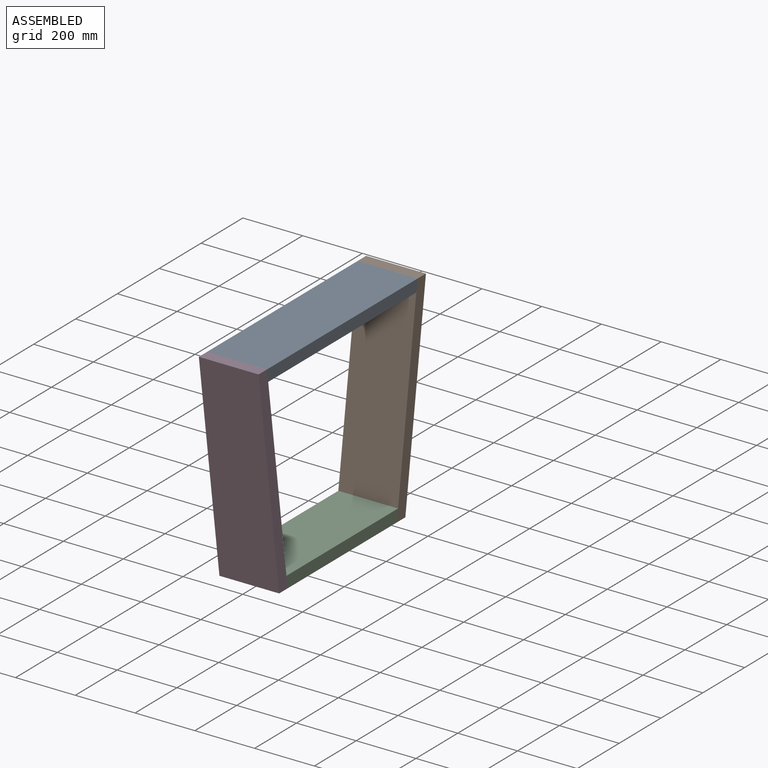
[diagram: assembled view]
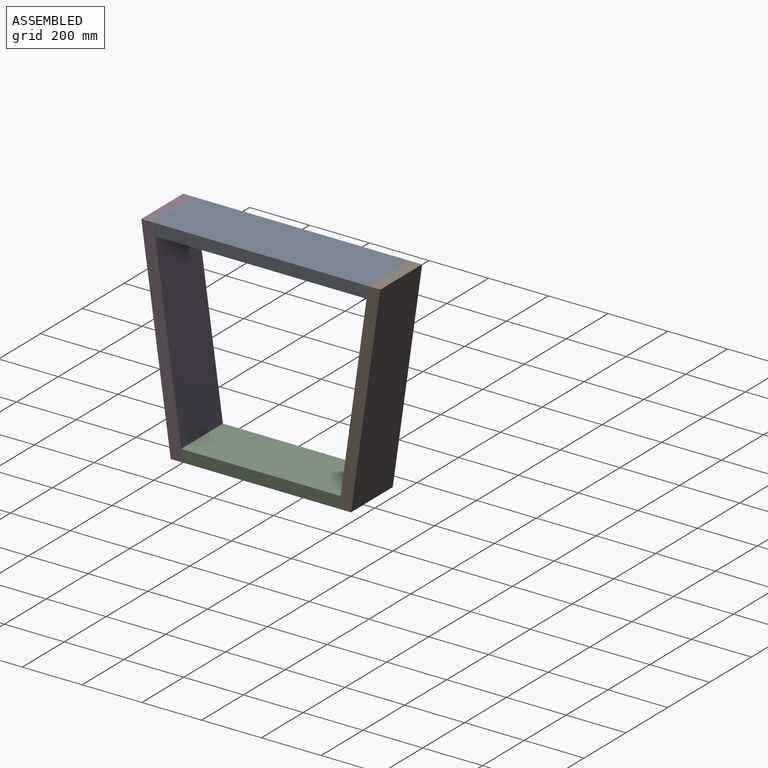
[diagram: assembled view, second angle]
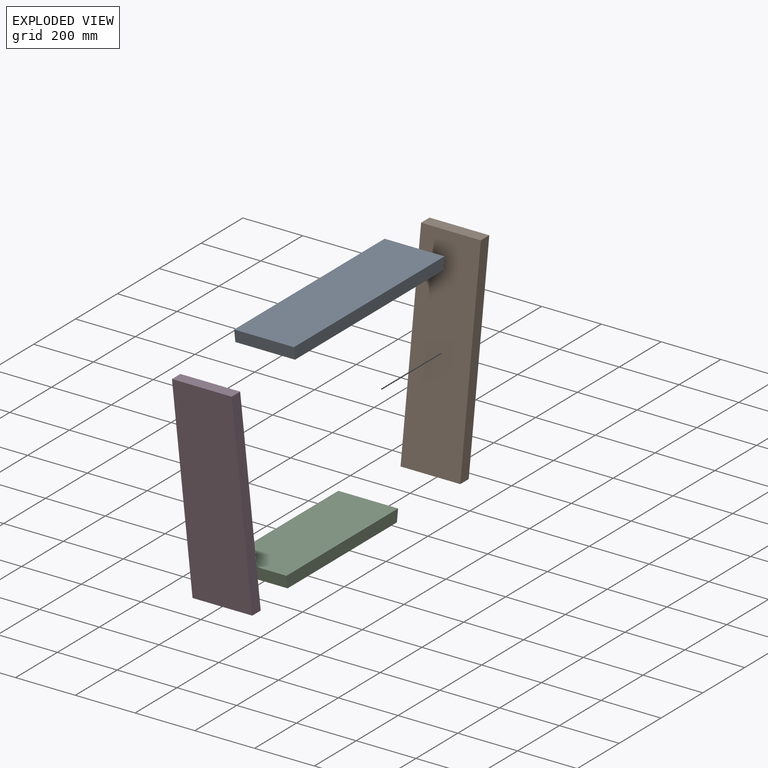
[diagram: exploded view]
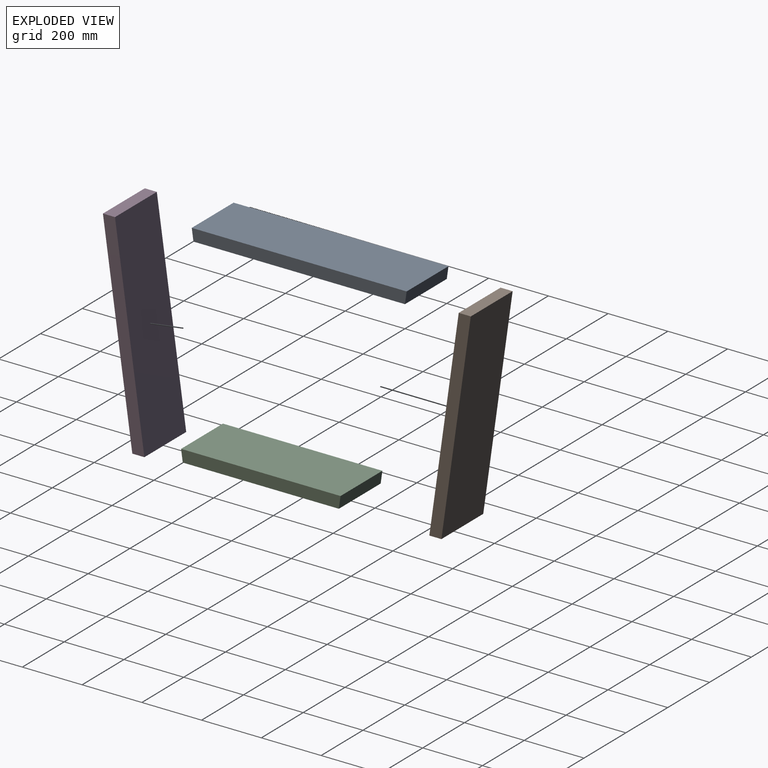
[diagram: exploded view, second angle]
ASSEMBLY  parts=4 mates=3
PART A: 6 faces, bbox 200x719.2x40 mm
  f0: plane 200x40mm, normal (0,0.99,-0.14), area 8078.6mm2, adj f1,f3,f4,f5
  f1: plane 719.21x200mm, normal (0,0,1), area 143842.8mm2, adj f0,f2,f4,f5
  f2: plane 200x40mm, normal (0,-0.99,-0.14), area 8078.6mm2, adj f1,f3,f4,f5
  f3: plane 707.97x200mm, normal (0,0,-1), area 141594.1mm2, adj f0,f2,f4,f5
  f4: plane 719.21x40mm, normal (1,0,0), area 28543.7mm2, adj f0,f1,f2,f3
  f5: plane 719.21x40mm, normal (-1,0,0), area 28543.7mm2, adj f0,f1,f2,f3
PART B: 6 faces, bbox 200x138.8x700 mm
  f0: plane 700x200mm, normal (0,-0.99,0.14), area 141375.9mm2, adj f1,f3,f4,f5
  f1: plane 200x40.39mm, normal (0,0,-1), area 8078.6mm2, adj f0,f2,f4,f5
  f2: plane 700x200mm, normal (0,0.99,-0.14), area 141375.9mm2, adj f1,f3,f4,f5
  f3: plane 200x40.39mm, normal (0,0,1), area 8078.6mm2, adj f0,f2,f4,f5
  f4: plane 700x138.77mm, normal (1,0,0), area 28275.2mm2, adj f0,f1,f2,f3
  f5: plane 700x138.77mm, normal (-1,0,0), area 28275.2mm2, adj f0,f1,f2,f3
PART C: 6 faces, bbox 200x533.7x40 mm
  f0: plane 200x40mm, normal (0,-0.99,-0.14), area 8078.6mm2, adj f1,f3,f4,f5
  f1: plane 522.46x200mm, normal (0,0,-1), area 104491.3mm2, adj f0,f2,f4,f5
  f2: plane 200x40mm, normal (0,0.99,-0.14), area 8078.6mm2, adj f1,f3,f4,f5
  f3: plane 533.7x200mm, normal (0,0,1), area 106740mm2, adj f0,f2,f4,f5
  f4: plane 533.7x40mm, normal (1,0,0), area 21123.1mm2, adj f0,f1,f2,f3
  f5: plane 533.7x40mm, normal (-1,0,0), area 21123.1mm2, adj f0,f1,f2,f3
PART D: 6 faces, bbox 200x138.8x700 mm
  f0: plane 700x200mm, normal (0,0.99,0.14), area 141375.9mm2, adj f1,f3,f4,f5
  f1: plane 200x40.39mm, normal (0,0,1), area 8078.6mm2, adj f0,f2,f4,f5
  f2: plane 700x200mm, normal (0,-0.99,-0.14), area 141375.9mm2, adj f1,f3,f4,f5
  f3: plane 200x40.39mm, normal (0,0,-1), area 8078.6mm2, adj f0,f2,f4,f5
  f4: plane 700x138.77mm, normal (1,0,0), area 28275.2mm2, adj f0,f1,f2,f3
  f5: plane 700x138.77mm, normal (-1,0,0), area 28275.2mm2, adj f0,f1,f2,f3
PLACE A t=(-78.76,4.5,70.71)mm
PLACE B t=(-78.76,4.5,70.71)mm
PLACE C t=(-78.76,4.5,70.71)mm
PLACE D t=(-78.76,4.5,70.71)mm
MATE fastened B.f0 <-> C.f2  axis (0,-0.99,0.14) through (121.24,-35.89,70.71)mm
MATE fastened D.f0 <-> A.f2  axis (0,0.99,0.14) through (121.24,-656.73,770.71)mm
MATE fastened C.f0 <-> D.f0  axis (0,-0.99,-0.14) through (121.24,-558.35,70.71)mm
